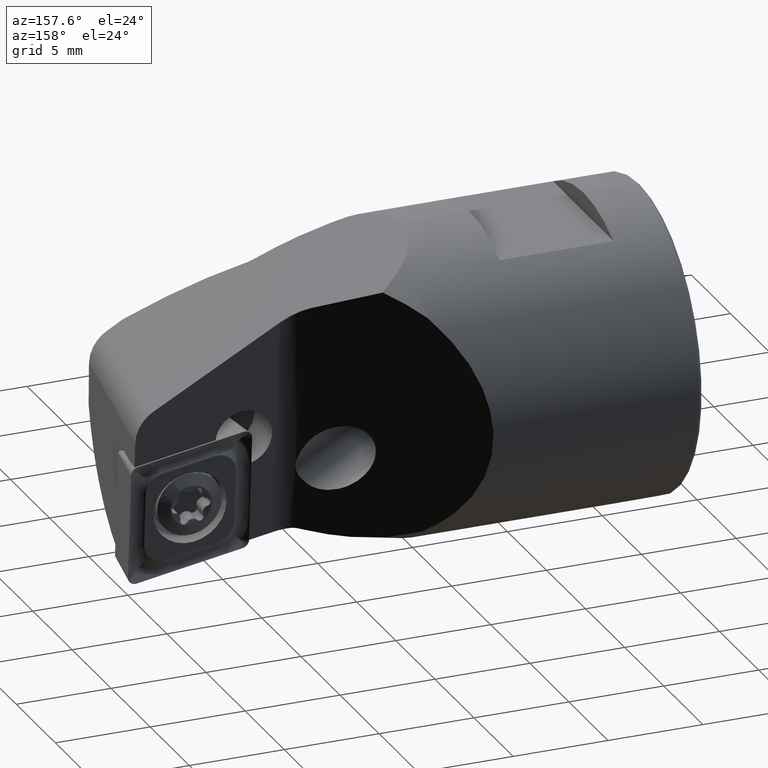
[diagram: clean part render]
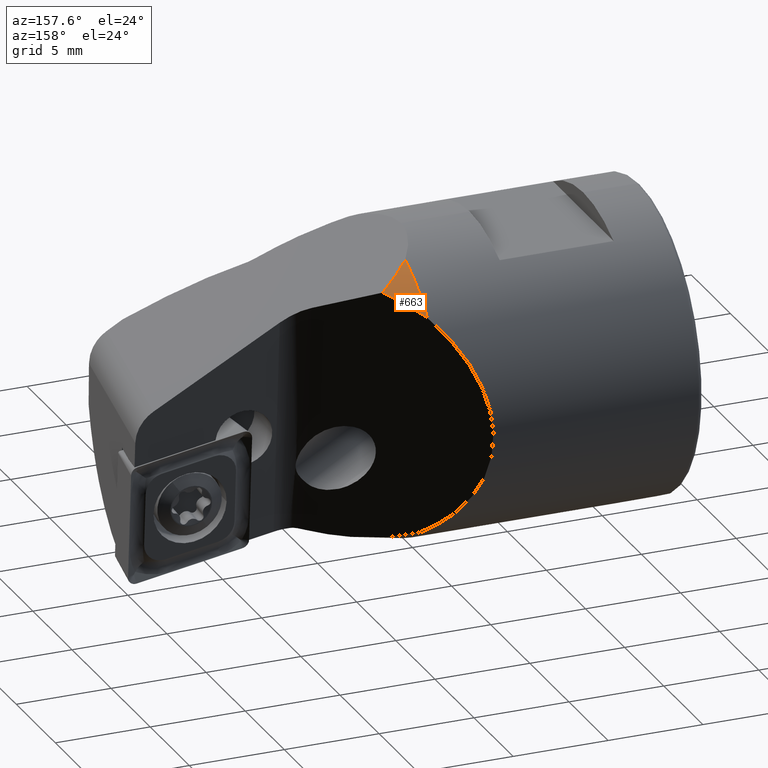
[diagram: same view with one face highlighted and labeled with its STEP entity id]
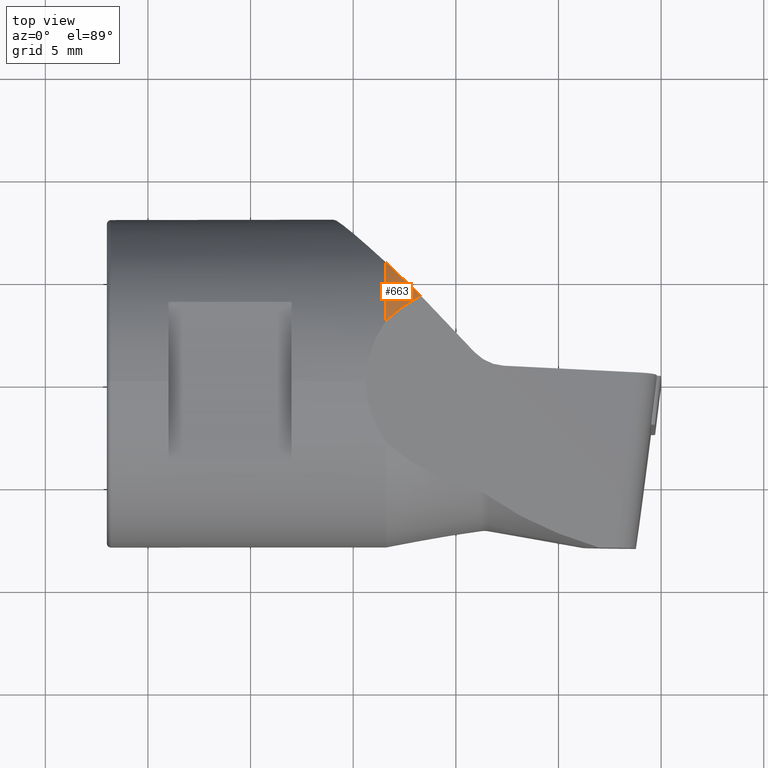
[diagram: same view with one face highlighted and labeled with its STEP entity id]
A machine part, auxiliary view. The second image highlights one B-rep face of the part: STEP entity #663.
A second angle (top view) of the same face is appended — the face is thin or edge-on in the first view.
In plain terms, the highlighted conical surface has half-angle 10 deg.
Its self-contained STEP definition (entity closure, byte-faithful):
#142 = DIRECTION ( 'NONE',  ( -1.000000000000000000, -0.0000000000000000000, -0.0000000000000000000 ) ) ;
#249 = FACE_OUTER_BOUND ( 'NONE', #1263, .T. ) ;
#438 = CARTESIAN_POINT ( 'NONE',  ( -11.70575616005572100, 4.185967853453973000, 15.33929151892214700 ) ) ;
#516 = VERTEX_POINT ( 'NONE', #1104 ) ;
#548 =( BOUNDED_CURVE ( )  B_SPLINE_CURVE ( 3, ( #438, #4219, #2189, #1151 ),
 .UNSPECIFIED., .F., .T. ) 
 B_SPLINE_CURVE_WITH_KNOTS ( ( 4, 4 ),
 ( 5.055050265405443900, 5.317707677577264000 ),
 .UNSPECIFIED. ) 
 CURVE ( )  GEOMETRIC_REPRESENTATION_ITEM ( )  RATIONAL_B_SPLINE_CURVE ( ( 1.000000000000000000, 0.9942591818733307300, 0.9942591818733307300, 1.000000000000000000 ) ) 
 REPRESENTATION_ITEM ( '' )  );
#663 = ADVANCED_FACE ( 'NONE', ( #249 ), #4201, .T. ) ;
#704 = VERTEX_POINT ( 'NONE', #2696 ) ;
#1033 = ORIENTED_EDGE ( 'NONE', *, *, #2693, .T. ) ;
#1104 = CARTESIAN_POINT ( 'NONE',  ( -13.40000000000000000, 5.816406421883498500, 14.36766932697321600 ) ) ;
#1151 = CARTESIAN_POINT ( 'NONE',  ( -13.40000000000000000, 5.816406421883498500, 14.36766932697321600 ) ) ;
#1162 = CARTESIAN_POINT ( 'NONE',  ( -13.40000000000000200, 2.960014748538741800, 16.30724815842643200 ) ) ;
#1259 = CARTESIAN_POINT ( 'NONE',  ( -12.36546005579108600, 3.817863033168879600, 15.71624127283771300 ) ) ;
#1263 = EDGE_LOOP ( 'NONE', ( #4092, #1033, #2970 ) ) ;
#1292 = DIRECTION ( 'NONE',  ( 0.0000000000000000000, 0.0000000000000000000, 1.000000000000000000 ) ) ;
#1526 = AXIS2_PLACEMENT_3D ( 'NONE', #2373, #1998, #1292 ) ;
#1536 = AXIS2_PLACEMENT_3D ( 'NONE', #2329, #142, #1762 ) ;
#1762 = DIRECTION ( 'NONE',  ( 0.0000000000000000000, 0.0000000000000000000, 1.000000000000000000 ) ) ;
#1780 = CARTESIAN_POINT ( 'NONE',  ( -13.40000000000000200, 2.960014748538741800, 16.30724815842643200 ) ) ;
#1998 = DIRECTION ( 'NONE',  ( -1.000000000000000000, -0.0000000000000000000, -0.0000000000000000000 ) ) ;
#2108 = CARTESIAN_POINT ( 'NONE',  ( -11.70575616005572100, 4.185967853453973000, 15.33929151892214700 ) ) ;
#2189 = CARTESIAN_POINT ( 'NONE',  ( -12.87503991516163800, 5.317667712046749700, 14.76098446977843200 ) ) ;
#2329 = CARTESIAN_POINT ( 'NONE',  ( -13.40000000000000000, 0.0000000000000000000, 8.875000000000000000 ) ) ;
#2373 = CARTESIAN_POINT ( 'NONE',  ( -8.787705791787875100, 0.0000000000000000000, 8.875000000000000000 ) ) ;
#2693 = EDGE_CURVE ( 'NONE', #704, #516, #548, .T. ) ;
#2696 = CARTESIAN_POINT ( 'NONE',  ( -11.70575616005572100, 4.185967853453973000, 15.33929151892214700 ) ) ;
#2830 =( BOUNDED_CURVE ( )  B_SPLINE_CURVE ( 3, ( #2108, #1259, #3046, #1162 ),
 .UNSPECIFIED., .F., .F. ) 
 B_SPLINE_CURVE_WITH_KNOTS ( ( 4, 4 ),
 ( 5.510477334523519000, 5.766689907500465400 ),
 .UNSPECIFIED. ) 
 CURVE ( )  GEOMETRIC_REPRESENTATION_ITEM ( )  RATIONAL_B_SPLINE_CURVE ( ( 1.000000000000000000, 0.9945370703671702100, 0.9945370703671702100, 1.000000000000000000 ) ) 
 REPRESENTATION_ITEM ( '' )  );
#2970 = ORIENTED_EDGE ( 'NONE', *, *, #3376, .F. ) ;
#3046 = CARTESIAN_POINT ( 'NONE',  ( -12.93331012742249400, 3.406967303740839900, 16.04066579433792900 ) ) ;
#3376 = EDGE_CURVE ( 'NONE', #3859, #516, #3396, .T. ) ;
#3396 = CIRCLE ( 'NONE', #1536, 8.000000000000001800 ) ;
#3859 = VERTEX_POINT ( 'NONE', #1780 ) ;
#4092 = ORIENTED_EDGE ( 'NONE', *, *, #4464, .F. ) ;
#4201 = CONICAL_SURFACE ( 'NONE', #1526, 7.186728088126851200, 0.1745329251994259300 ) ;
#4219 = CARTESIAN_POINT ( 'NONE',  ( -12.30703113340311800, 4.771050157270092700, 15.08672857140468100 ) ) ;
#4464 = EDGE_CURVE ( 'NONE', #704, #3859, #2830, .T. ) ;